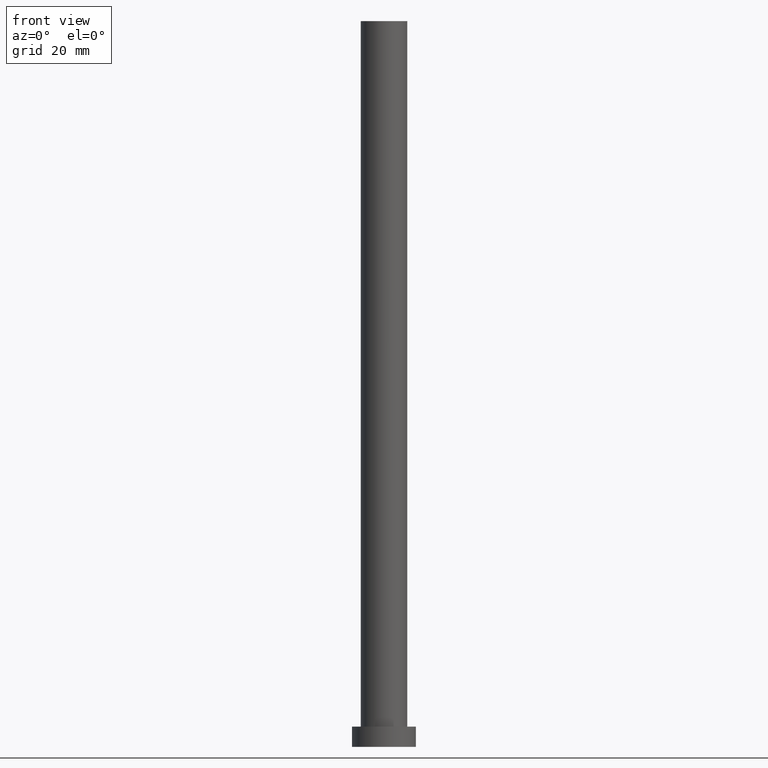
[diagram: clean part render]
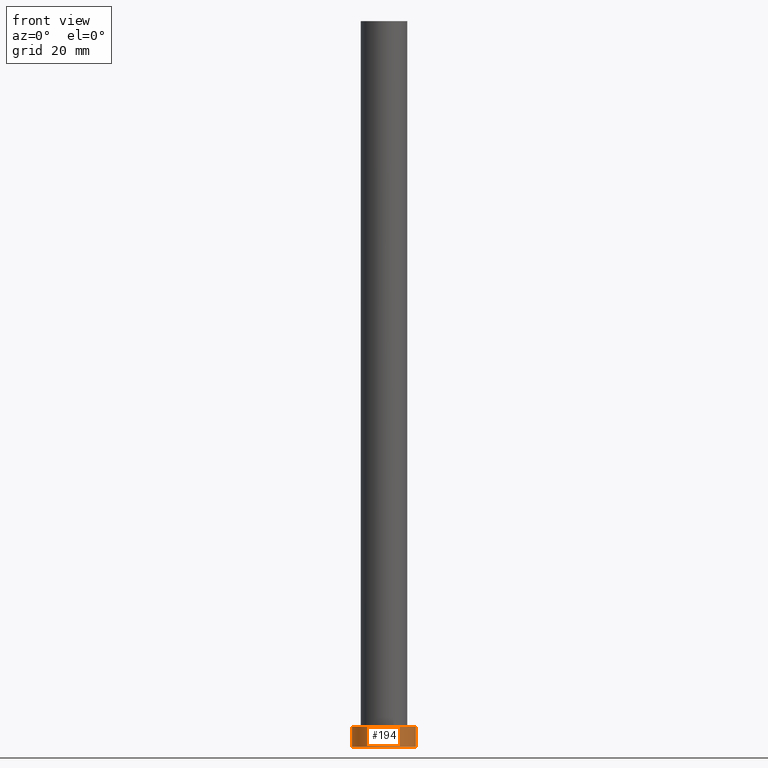
[diagram: same view with one face highlighted and labeled with its STEP entity id]
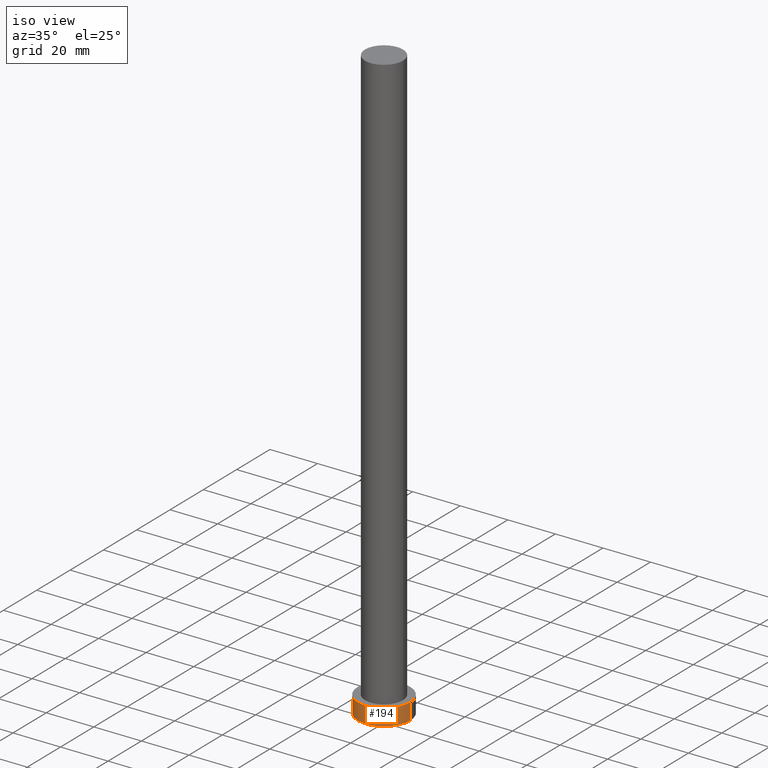
[diagram: same view with one face highlighted and labeled with its STEP entity id]
A machine part, front view. The second image highlights one B-rep face of the part: STEP entity #194.
A second angle (iso view) of the same face is appended — the face is thin or edge-on in the first view.
In plain terms, the highlighted cylindrical surface (edge-blend (fillet) strip) has radius 11 mm, axis along (-0, -0, -1).
Its self-contained STEP definition (entity closure, byte-faithful):
#2 = EDGE_CURVE ( 'NONE', #45, #119, #109, .T. ) ;
#7 = CIRCLE ( 'NONE', #255, 11.00000000000000000 ) ;
#15 = CIRCLE ( 'NONE', #84, 11.00000000000000000 ) ;
#27 = VERTEX_POINT ( 'NONE', #224 ) ;
#36 = EDGE_CURVE ( 'NONE', #45, #27, #15, .T. ) ;
#41 = ORIENTED_EDGE ( 'NONE', *, *, #2, .T. ) ;
#44 = CARTESIAN_POINT ( 'NONE',  ( 11.00000000000000000, 1.347111479062088405E-15, 0.000000000000000000 ) ) ;
#45 = VERTEX_POINT ( 'NONE', #92 ) ;
#46 = AXIS2_PLACEMENT_3D ( 'NONE', #238, #236, #64 ) ;
#52 = EDGE_LOOP ( 'NONE', ( #107, #173, #41, #94 ) ) ;
#58 = DIRECTION ( 'NONE',  ( -0.000000000000000000, -0.000000000000000000, -1.000000000000000000 ) ) ;
#64 = DIRECTION ( 'NONE',  ( -1.000000000000000000, 0.000000000000000000, 0.000000000000000000 ) ) ;
#84 = AXIS2_PLACEMENT_3D ( 'NONE', #90, #245, #210 ) ;
#88 = DIRECTION ( 'NONE',  ( -0.000000000000000000, -0.000000000000000000, -1.000000000000000000 ) ) ;
#90 = CARTESIAN_POINT ( 'NONE',  ( 0.000000000000000000, 0.000000000000000000, 7.000000000000000000 ) ) ;
#92 = CARTESIAN_POINT ( 'NONE',  ( -11.00000000000000000, 0.000000000000000000, 7.000000000000000000 ) ) ;
#94 = ORIENTED_EDGE ( 'NONE', *, *, #158, .T. ) ;
#97 = DIRECTION ( 'NONE',  ( 1.000000000000000000, 0.000000000000000000, 0.000000000000000000 ) ) ;
#98 = CARTESIAN_POINT ( 'NONE',  ( 0.000000000000000000, 0.000000000000000000, 0.000000000000000000 ) ) ;
#107 = ORIENTED_EDGE ( 'NONE', *, *, #131, .F. ) ;
#109 = LINE ( 'NONE', #186, #214 ) ;
#118 = CARTESIAN_POINT ( 'NONE',  ( 11.00000000000000000, 1.347111479062088405E-15, 7.000000000000000000 ) ) ;
#119 = VERTEX_POINT ( 'NONE', #232 ) ;
#123 = LINE ( 'NONE', #118, #229 ) ;
#131 = EDGE_CURVE ( 'NONE', #27, #243, #123, .T. ) ;
#140 = DIRECTION ( 'NONE',  ( 0.000000000000000000, 0.000000000000000000, 1.000000000000000000 ) ) ;
#158 = EDGE_CURVE ( 'NONE', #119, #243, #7, .T. ) ;
#162 = FACE_OUTER_BOUND ( 'NONE', #52, .T. ) ;
#173 = ORIENTED_EDGE ( 'NONE', *, *, #36, .F. ) ;
#186 = CARTESIAN_POINT ( 'NONE',  ( -11.00000000000000000, 0.000000000000000000, 7.000000000000000000 ) ) ;
#194 = ADVANCED_FACE ( 'NONE', ( #162 ), #198, .T. ) ;
#198 = CYLINDRICAL_SURFACE ( 'NONE', #46, 11.00000000000000000 ) ;
#210 = DIRECTION ( 'NONE',  ( 1.000000000000000000, 0.000000000000000000, 0.000000000000000000 ) ) ;
#214 = VECTOR ( 'NONE', #88, 1000.000000000000000 ) ;
#224 = CARTESIAN_POINT ( 'NONE',  ( 11.00000000000000000, 1.347111479062088405E-15, 7.000000000000000000 ) ) ;
#229 = VECTOR ( 'NONE', #58, 1000.000000000000000 ) ;
#232 = CARTESIAN_POINT ( 'NONE',  ( -11.00000000000000000, 0.000000000000000000, 0.000000000000000000 ) ) ;
#236 = DIRECTION ( 'NONE',  ( -0.000000000000000000, -0.000000000000000000, -1.000000000000000000 ) ) ;
#238 = CARTESIAN_POINT ( 'NONE',  ( 0.000000000000000000, 0.000000000000000000, 7.000000000000000000 ) ) ;
#243 = VERTEX_POINT ( 'NONE', #44 ) ;
#245 = DIRECTION ( 'NONE',  ( 0.000000000000000000, 0.000000000000000000, 1.000000000000000000 ) ) ;
#255 = AXIS2_PLACEMENT_3D ( 'NONE', #98, #140, #97 ) ;